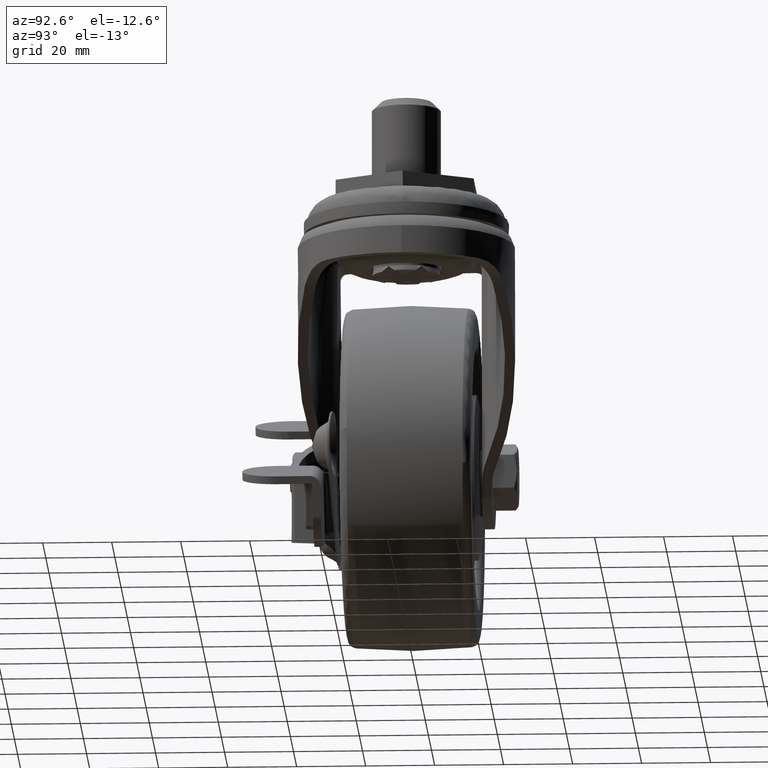
[diagram: clean part render]
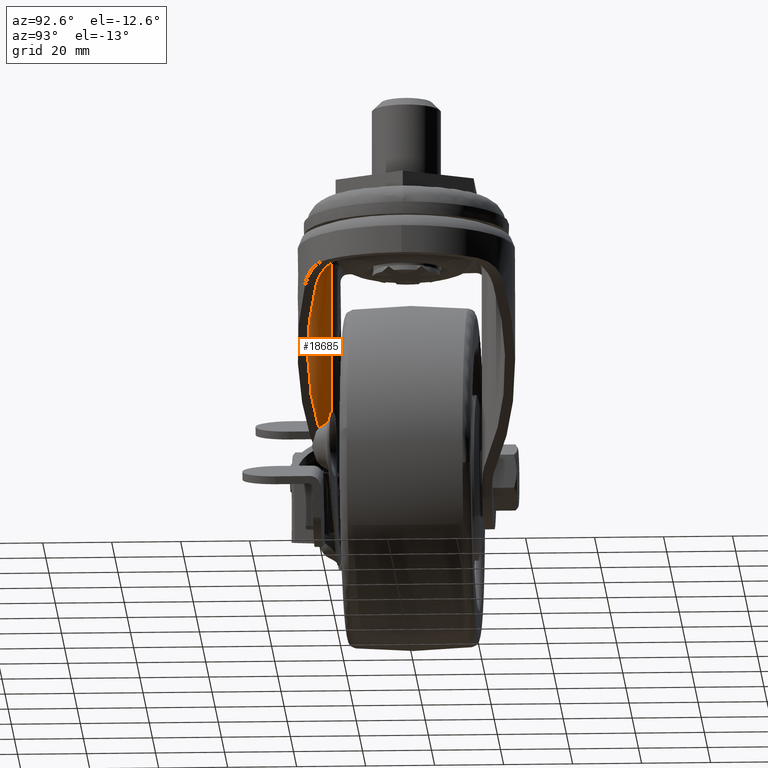
[diagram: same view with one face highlighted and labeled with its STEP entity id]
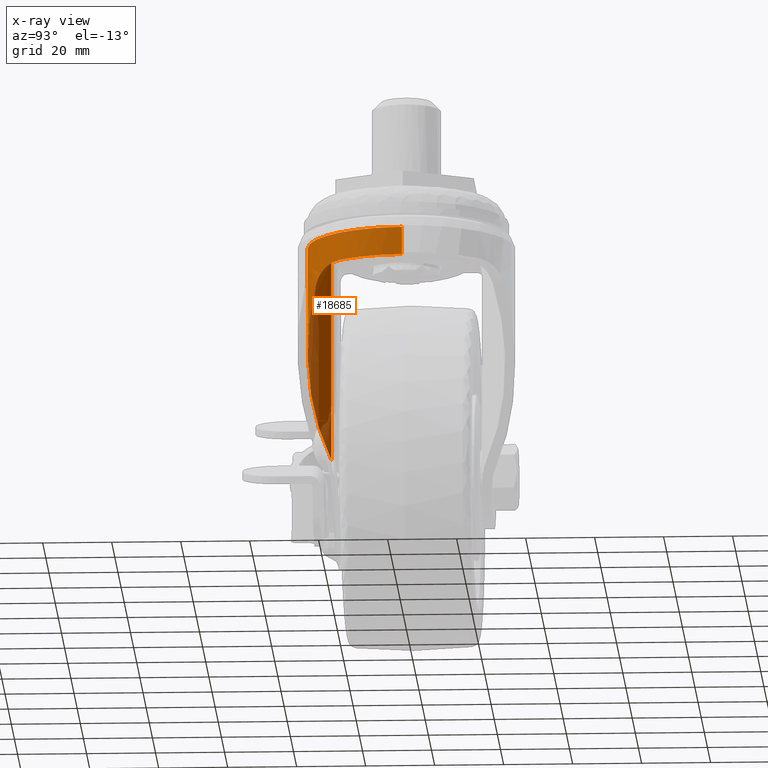
[diagram: x-ray of the same camera — body ghosted, the highlighted face saturated]
A machine part, auxiliary view. The second image highlights one B-rep face of the part: STEP entity #18685.
The next image is the same camera in x-ray: the body ghosted, the highlighted face saturated — about 4% of this face is hidden behind the body in this view.
In plain terms, the highlighted face is a freeform B-spline surface patch.
Its self-contained STEP definition (entity closure, byte-faithful):
#18084=CARTESIAN_POINT('',(-17.811575745032201,-22.616608977691950,-13.600000000000000));
#18085=VERTEX_POINT('',#18084);
#18104=CARTESIAN_POINT('',(-17.811575745032201,-22.616608977691950,-72.011274052201699));
#18105=VERTEX_POINT('',#18104);
#18106=CARTESIAN_POINT('',(-17.811575745032201,-22.616608977691950,-13.600000000000000));
#18107=CARTESIAN_POINT('',(-17.811575745032201,-22.616608977691950,-72.011274052201699));
#18108=QUASI_UNIFORM_CURVE('',1,(#18106,#18107),.UNSPECIFIED.,.F.,.U.);
#18109=EDGE_CURVE('',#18085,#18105,#18108,.T.);
#18341=CARTESIAN_POINT('',(12.862751000000200,-25.654295218901801,-27.145141999999950));
#18342=VERTEX_POINT('',#18341);
#18343=CARTESIAN_POINT('',(12.862751000000200,-25.654295218901801,-27.145141999999950));
#18344=CARTESIAN_POINT('',(12.228376631157021,-25.961531672081762,-28.073016454739509));
#18345=CARTESIAN_POINT('',(11.592434539451730,-26.241342536080289,-29.003183956088961));
#18346=CARTESIAN_POINT('',(10.317663681396940,-26.750465062462681,-30.867741184326949));
#18347=CARTESIAN_POINT('',(9.678834231863164,-26.979764773287421,-31.802131910482430));
#18348=CARTESIAN_POINT('',(7.758282126264521,-27.596572941515468,-34.611247986579428));
#18349=CARTESIAN_POINT('',(6.472515924605381,-27.913344010963559,-36.491887671727092));
#18350=CARTESIAN_POINT('',(3.891013800067967,-28.372476829811571,-40.267749361382322));
#18351=CARTESIAN_POINT('',(2.595272963256877,-28.514752615355469,-42.162978553306168));
#18352=CARTESIAN_POINT('',(-0.005966144399259,-28.628608597482081,-45.967708752392006));
#18353=CARTESIAN_POINT('',(-1.311463989402688,-28.600196243696089,-47.877209136692187));
#18354=CARTESIAN_POINT('',(-2.785815835756599,-28.469098417335118,-50.033685631832647));
#18355=CARTESIAN_POINT('',(-2.949732862046625,-28.453144929671659,-50.273440623303607));
#18356=CARTESIAN_POINT('',(-3.277065779133380,-28.418525800193269,-50.752217615057013));
#18357=CARTESIAN_POINT('',(-3.767557343747710,-28.362508389150371,-51.469640347474297));
#18358=CARTESIAN_POINT('',(-4.256526437774484,-28.294232577020878,-52.184836222004677));
#18359=CARTESIAN_POINT('',(-5.232430644983131,-28.141304049850749,-53.612252947231177));
#18360=CARTESIAN_POINT('',(-5.880323911248537,-28.017535441027722,-54.559900961859803));
#18361=CARTESIAN_POINT('',(-7.815756733017501,-27.579827837752489,-57.390782476601252));
#18362=CARTESIAN_POINT('',(-9.095096728848606,-27.199868854463681,-59.262022803071218));
#18363=CARTESIAN_POINT('',(-10.996444919875101,-26.487723716611900,-62.043050068147991));
#18364=CARTESIAN_POINT('',(-11.627273051627400,-26.226552608744939,-62.965737581282177));
#18365=CARTESIAN_POINT('',(-12.882651788551430,-25.653665942903451,-64.801930716164279));
#18366=CARTESIAN_POINT('',(-13.507203790993570,-25.341961635262681,-65.715438381644901));
#18367=CARTESIAN_POINT('',(-14.749517009645690,-24.663875982534570,-67.532521096500858));
#18368=CARTESIAN_POINT('',(-15.367280511241001,-24.297513038571619,-68.436099488619533));
#18369=CARTESIAN_POINT('',(-16.595303217275930,-23.504365172609472,-70.232280032369786));
#18370=CARTESIAN_POINT('',(-17.205566310407342,-23.077611560997571,-71.124887871837757));
#18371=CARTESIAN_POINT('',(-17.811575745032201,-22.616608977691950,-72.011274052201500));
#18372=B_SPLINE_CURVE_WITH_KNOTS('',3,(#18343,#18344,#18345,#18346,#18347,#18348,#18349,#18350,#18351,#18352,#18353,#18354,#18355,#18356,#18357,#18358,#18359,#18360,#18361,#18362,#18363,#18364,#18365,#18366,#18367,#18368,#18369,#18370,#18371),.UNSPECIFIED.,.F.,.U.,(4,2,2,2,2,2,2,1,2,2,2,2,2,2,4),(0.0,0.062500000000000,0.125000000000000,0.250000000000001,0.375000000000002,0.500000000000002,0.515625000000002,0.531250000000002,0.562500000000002,0.625000000000002,0.750000000000002,0.812500000000002,0.875000000000001,0.937500000000001,1.0),.UNSPECIFIED.);
#18373=EDGE_CURVE('',#18342,#18105,#18372,.T.);
#18439=CARTESIAN_POINT('',(23.181616000000201,-17.288022740067099,-21.699999999999999));
#18440=VERTEX_POINT('',#18439);
#18441=CARTESIAN_POINT('',(12.862751000000250,-25.654295218901790,-27.145141999999950));
#18442=CARTESIAN_POINT('',(13.202584324850671,-25.489709147131911,-26.648081072232110));
#18443=CARTESIAN_POINT('',(13.573847211764260,-25.301878005822800,-26.181849238479408));
#18444=CARTESIAN_POINT('',(14.073963489318279,-25.032786181593050,-25.637142103545269));
#18445=CARTESIAN_POINT('',(14.175794513894649,-24.977244560727112,-25.530111925518181));
#18446=CARTESIAN_POINT('',(14.383012252600309,-24.862549947549031,-25.319890088832349));
#18447=CARTESIAN_POINT('',(14.488036825227960,-24.803594225983350,-25.217077222691980));
#18448=CARTESIAN_POINT('',(14.805615062359360,-24.622661684813270,-24.916816292222890));
#18449=CARTESIAN_POINT('',(15.021285922013771,-24.496280894572550,-24.726907950118619));
#18450=CARTESIAN_POINT('',(15.678466868863209,-24.099195294027311,-24.186279311525979));
#18451=CARTESIAN_POINT('',(16.130106076924779,-23.810578056918612,-23.864576115383230));
#18452=CARTESIAN_POINT('',(16.822134836363428,-23.338550838062549,-23.435210524888401));
#18453=CARTESIAN_POINT('',(17.055251085431681,-23.174683669787068,-23.300975997863830));
#18454=CARTESIAN_POINT('',(17.525512509158251,-22.833262284098460,-23.049683200212161));
#18455=CARTESIAN_POINT('',(17.759764019582128,-22.657802478969661,-22.934165773064400));
#18456=CARTESIAN_POINT('',(18.458281463238670,-22.117711488373960,-22.615436311146389));
#18457=CARTESIAN_POINT('',(18.918601813657020,-21.739152123388781,-22.439773780034479));
#18458=CARTESIAN_POINT('',(19.824573362261749,-20.944838053781929,-22.149835032166369));
#18459=CARTESIAN_POINT('',(20.270239796793248,-20.529081985933679,-22.035612304189819));
#18460=CARTESIAN_POINT('',(20.925213578113770,-19.877140609364879,-21.903323318337598));
#18461=CARTESIAN_POINT('',(21.249323368843061,-19.544089233892830,-21.846965629890921));
#18462=CARTESIAN_POINT('',(21.567914528774221,-19.200305573133338,-21.804142858163448));
#18463=CARTESIAN_POINT('',(21.779032522415189,-18.968716764874049,-21.778483732514779));
#18464=CARTESIAN_POINT('',(21.884077459270021,-18.851578333571020,-21.767089023136290));
#18465=CARTESIAN_POINT('',(22.403280002699269,-18.262953945862758,-21.717279694090120));
#18466=CARTESIAN_POINT('',(22.801019416785199,-17.780976510213829,-21.700000005475982));
#18467=CARTESIAN_POINT('',(23.181616000000218,-17.288022740067110,-21.700000000000081));
#18468=B_SPLINE_CURVE_WITH_KNOTS('',3,(#18441,#18442,#18443,#18444,#18445,#18446,#18447,#18448,#18449,#18450,#18451,#18452,#18453,#18454,#18455,#18456,#18457,#18458,#18459,#18460,#18461,#18462,#18463,#18464,#18465,#18466,#18467),.UNSPECIFIED.,.F.,.U.,(4,2,2,2,2,2,2,2,2,2,1,2,2,4),(0.0,0.125000000000001,0.156250000000001,0.187500000000001,0.250000000000001,0.375000000000001,0.437500000000001,0.500000000000001,0.625000000000000,0.750000000000000,0.812499999999999,0.843750000000000,0.875000000000000,1.0),.UNSPECIFIED.);
#18469=EDGE_CURVE('',#18342,#18440,#18468,.T.);
#18557=CARTESIAN_POINT('',(29.100000000000001,0.0,-74.928917047550371));
#18558=CARTESIAN_POINT('',(29.100000000000012,-28.600000000000001,-74.928917047550357));
#18559=CARTESIAN_POINT('',(1.959370E-015,-28.600000000000001,-74.928917047550371));
#18560=CARTESIAN_POINT('',(-11.899244983950865,-28.600000000000005,-74.928917047550371));
#18561=CARTESIAN_POINT('',(-20.389273447257867,-20.405900910358383,-74.928917047550357));
#18562=CARTESIAN_POINT('',(29.100000000000001,0.0,-10.682357962086590));
#18563=CARTESIAN_POINT('',(29.100000000000012,-28.600000000000001,-10.682357962086584));
#18564=CARTESIAN_POINT('',(1.959370E-015,-28.600000000000001,-10.682357962086590));
#18565=CARTESIAN_POINT('',(-11.899244983950865,-28.600000000000005,-10.682357962086584));
#18566=CARTESIAN_POINT('',(-20.389273447257867,-20.405900910358383,-10.682357962086583));
#18574=(BOUNDED_SURFACE()B_SPLINE_SURFACE(2,1,((#18557,#18562),(#18558,#18563),(#18559,#18564),(#18560,#18565),(#18561,#18566)),.UNSPECIFIED.,.F.,.F.,.U.)B_SPLINE_SURFACE_WITH_KNOTS((3,2,3),(2,2),(0.0,47.808570764877167,71.451058067198289),(0.0,64.246559085463787),.UNSPECIFIED.)GEOMETRIC_REPRESENTATION_ITEM()RATIONAL_B_SPLINE_SURFACE(((1.0,1.0),(0.707106781186547,0.707106781186547),(1.0,1.0),(0.855157263730203,0.855157263730203),(0.853570956100934,0.853570956100934)))REPRESENTATION_ITEM('')SURFACE());
#18575=CARTESIAN_POINT('',(29.100000014363751,-0.000000456605498,-13.599999999999859));
#18576=VERTEX_POINT('',#18575);
#18577=CARTESIAN_POINT('',(-17.811575745032201,-22.616608977691950,-13.600000000000000));
#18578=CARTESIAN_POINT('',(-16.732939981011398,-23.437147149751048,-13.600000000000000));
#18579=CARTESIAN_POINT('',(-15.610028581010290,-24.172795332303782,-13.599999999999911));
#18580=CARTESIAN_POINT('',(-13.279846619904831,-25.482349282144970,-13.599999999999911));
#18581=CARTESIAN_POINT('',(-12.072560044024060,-26.056224344189481,-13.599999999999911));
#18582=CARTESIAN_POINT('',(-10.510190415845489,-26.671449697466581,-13.599999999999911));
#18583=CARTESIAN_POINT('',(-10.195041455231509,-26.789365904669101,-13.599999999999911));
#18584=CARTESIAN_POINT('',(-9.718258958600606,-26.958457759298199,-13.599999999999911));
#18585=CARTESIAN_POINT('',(-9.558654789816982,-27.013524326851091,-13.599999999999911));
#18586=CARTESIAN_POINT('',(-9.238083379669748,-27.121044033274210,-13.599999999999911));
#18587=CARTESIAN_POINT('',(-9.076958358553611,-27.173546135529978,-13.599999999999911));
#18588=CARTESIAN_POINT('',(-8.270227499492787,-27.428742378608021,-13.599999999999911));
#18589=CARTESIAN_POINT('',(-7.621444284729209,-27.609542636520150,-13.599999999999911));
#18590=CARTESIAN_POINT('',(-5.665183091495506,-28.083825251302301,-13.599999999999911));
#18591=CARTESIAN_POINT('',(-4.347839263139228,-28.309503520776559,-13.599999999999911));
#18592=CARTESIAN_POINT('',(-2.352319730924172,-28.513979086189501,-13.599999999999911));
#18593=CARTESIAN_POINT('',(-1.683884330536354,-28.559717638626431,-13.599999999999900));
#18594=CARTESIAN_POINT('',(-0.676263418530487,-28.594183662586460,-13.599999999999900));
#18595=CARTESIAN_POINT('',(-0.339561067059315,-28.599976912482429,-13.599999999999911));
#18596=CARTESIAN_POINT('',(0.166751858450564,-28.600011440488721,-13.599999999999900));
#18597=CARTESIAN_POINT('',(0.335732783776540,-28.598580045371740,-13.599999999999900));
#18598=CARTESIAN_POINT('',(0.674117880338041,-28.592808453263480,-13.599999999999911));
#18599=CARTESIAN_POINT('',(0.843519337820390,-28.588464560993572,-13.599999999999900));
#18600=CARTESIAN_POINT('',(2.364144725044675,-28.536433512468921,-13.599999999999900));
#18601=CARTESIAN_POINT('',(3.698053832972889,-28.398522065625968,-13.599999999999900));
#18602=CARTESIAN_POINT('',(6.331580792743363,-27.945696724122978,-13.599999999999900));
#18603=CARTESIAN_POINT('',(7.631196553979185,-27.630772038302180,-13.599999999999900));
#18604=CARTESIAN_POINT('',(9.233794671645061,-27.123962728820398,-13.599999999999900));
#18605=CARTESIAN_POINT('',(9.553213263067669,-27.016917628660359,-13.599999999999900));
#18606=CARTESIAN_POINT('',(10.189815622644470,-26.791291858224280,-13.599999999999900));
#18607=CARTESIAN_POINT('',(10.507568180022380,-26.672473761305859,-13.599999999999890));
#18608=CARTESIAN_POINT('',(11.450935936333209,-26.301022661209910,-13.599999999999890));
#18609=CARTESIAN_POINT('',(12.067921680440460,-26.033065585948410,-13.599999999999890));
#18610=CARTESIAN_POINT('',(13.883896527258401,-25.169581602390679,-13.599999999999890));
#18611=CARTESIAN_POINT('',(15.048066773654890,-24.514720603022269,-13.599999999999890));
#18612=CARTESIAN_POINT('',(16.724700241812290,-23.413787865348102,-13.599999999999881));
#18613=CARTESIAN_POINT('',(17.271933467373199,-23.026966969558110,-13.599999999999881));
#18614=CARTESIAN_POINT('',(18.074944737290771,-22.416337291306771,-13.599999999999881));
#18615=CARTESIAN_POINT('',(18.339639308605889,-22.207722977550159,-13.599999999999881));
#18616=CARTESIAN_POINT('',(18.862979743275289,-21.780186872221599,-13.599999999999881));
#18617=CARTESIAN_POINT('',(19.121970861957070,-21.560936630397219,-13.599999999999881));
#18618=CARTESIAN_POINT('',(20.391821992374091,-20.447140288000021,-13.599999999999881));
#18619=CARTESIAN_POINT('',(21.334681334815361,-19.494891829582759,-13.599999999999870));
#18620=CARTESIAN_POINT('',(23.078361966503369,-17.471329452323410,-13.599999999999870));
#18621=CARTESIAN_POINT('',(23.879185343160170,-16.400017283283159,-13.599999999999870));
#18622=CARTESIAN_POINT('',(24.788666827226869,-14.984135852412781,-13.599999999999870));
#18623=CARTESIAN_POINT('',(24.965964387801900,-14.697104608815140,-13.599999999999870));
#18624=CARTESIAN_POINT('',(25.224893428886539,-14.260675389991571,-13.599999999999870));
#18625=CARTESIAN_POINT('',(25.310110568996461,-14.114079016822281,-13.599999999999870));
#18626=CARTESIAN_POINT('',(25.477580463266399,-13.819974892112990,-13.599999999999870));
#18627=CARTESIAN_POINT('',(25.559881111336178,-13.672392308152350,-13.599999999999870));
#18628=CARTESIAN_POINT('',(25.964266721648791,-12.931846704127880,-13.599999999999870));
#18629=CARTESIAN_POINT('',(26.265026271597659,-12.330995794952949,-13.599999999999870));
#18630=CARTESIAN_POINT('',(27.100450494297629,-10.503714808923720,-13.599999999999870));
#18631=CARTESIAN_POINT('',(27.568581710124999,-9.252675194717591,-13.599999999999870));
#18632=CARTESIAN_POINT('',(28.137121887437090,-7.326678567156085,-13.599999999999870));
#18633=CARTESIAN_POINT('',(28.304279221929900,-6.676410584773525,-13.599999999999859));
#18634=CARTESIAN_POINT('',(28.484604151162500,-5.852988936799601,-13.599999999999859));
#18635=CARTESIAN_POINT('',(28.519236290041981,-5.687774622703993,-13.599999999999870));
#18636=CARTESIAN_POINT('',(28.585610717277881,-5.356277090420384,-13.599999999999870));
#18637=CARTESIAN_POINT('',(28.617376101817751,-5.189865227705866,-13.599999999999859));
#18638=CARTESIAN_POINT('',(28.708135130792019,-4.689909295658024,-13.599999999999859));
#18639=CARTESIAN_POINT('',(28.762443881481460,-4.356526276098738,-13.599999999999859));
#18640=CARTESIAN_POINT('',(29.003481230934881,-2.689221977070626,-13.599999999999859));
#18641=CARTESIAN_POINT('',(29.099145883686631,-1.354138902197815,-13.599999999999859));
#18642=CARTESIAN_POINT('',(29.099998097049330,-0.011897616433074,-13.599999999999859));
#18643=CARTESIAN_POINT('',(29.099999995199848,-0.005949048505358,-13.599999999999859));
#18644=CARTESIAN_POINT('',(29.100000014363751,-0.000000456605498,-13.599999999999859));
#18645=B_SPLINE_CURVE_WITH_KNOTS('',3,(#18577,#18578,#18579,#18580,#18581,#18582,#18583,#18584,#18585,#18586,#18587,#18588,#18589,#18590,#18591,#18592,#18593,#18594,#18595,#18596,#18597,#18598,#18599,#18600,#18601,#18602,#18603,#18604,#18605,#18606,#18607,#18608,#18609,#18610,#18611,#18612,#18613,#18614,#18615,#18616,#18617,#18618,#18619,#18620,#18621,#18622,#18623,#18624,#18625,#18626,#18627,#18628,#18629,#18630,#18631,#18632,#18633,#18634,#18635,#18636,#18637,#18638,#18639,#18640,#18641,#18642,#18643,#18644),.UNSPECIFIED.,.F.,.U.,(4,2,2,2,2,2,2,2,2,2,2,2,2,2,2,2,2,2,2,2,2,2,2,2,2,2,2,2,2,2,2,2,2,4),(0.0,0.031250000000000,0.062500000000000,0.070312500000000,0.074218750000000,0.078125000000000,0.093750000000000,0.125000000000000,0.140625000000000,0.148437500000000,0.152343750000000,0.156250000000000,0.187500000000000,0.218750000000000,0.226562500000000,0.234375000000000,0.250000000000000,0.281250000000000,0.296875000000000,0.304687499999999,0.312499999999999,0.343749999999999,0.374999999999999,0.382812499999999,0.386718749999999,0.390624999999999,0.406249999999999,0.437499999999999,0.453124999999999,0.457031249999999,0.460937499999998,0.468749999999998,0.499999999999998,0.500139110236038),.UNSPECIFIED.);
#18646=EDGE_CURVE('',#18085,#18576,#18645,.T.);
#18647=ORIENTED_EDGE('',*,*,#18646,.T.);
#18648=CARTESIAN_POINT('',(29.100000000714680,0.000002647915596,-21.700000000000081));
#18649=VERTEX_POINT('',#18648);
#18650=CARTESIAN_POINT('',(29.100000000714680,0.000002647915596,-21.700000000000081));
#18651=CARTESIAN_POINT('',(29.100000014363751,-0.000000456605498,-13.599999999999859));
#18652=QUASI_UNIFORM_CURVE('',1,(#18650,#18651),.UNSPECIFIED.,.F.,.U.);
#18653=EDGE_CURVE('',#18649,#18576,#18652,.T.);
#18654=ORIENTED_EDGE('',*,*,#18653,.F.);
#18655=CARTESIAN_POINT('',(29.100000000714680,0.000002647915596,-21.700000000000081));
#18656=CARTESIAN_POINT('',(29.099999999987201,-0.002354447910457,-21.700000000000081));
#18657=CARTESIAN_POINT('',(29.099999703234271,-0.004711588758289,-21.700000000000081));
#18658=CARTESIAN_POINT('',(29.099802307710839,-0.789622312405713,-21.700000000000081));
#18659=CARTESIAN_POINT('',(29.066985183358959,-1.566601144222461,-21.700000000000081));
#18660=CARTESIAN_POINT('',(28.938184197756371,-3.109763819725974,-21.700000000000070));
#18661=CARTESIAN_POINT('',(28.746207452592419,-4.642129965156079,-21.700000000000060));
#18662=CARTESIAN_POINT('',(28.429399725743089,-6.153162905299591,-21.700000000000070));
#18663=CARTESIAN_POINT('',(28.049702279619432,-7.653448198716451,-21.700000000000049));
#18664=CARTESIAN_POINT('',(27.828412395176692,-8.398217654081414,-21.700000000000049));
#18665=CARTESIAN_POINT('',(27.511400350570518,-9.322275298951729,-21.700000000000038));
#18666=CARTESIAN_POINT('',(27.445952049983269,-9.506786261974400,-21.700000000000049));
#18667=CARTESIAN_POINT('',(27.311620124771299,-9.873394702606838,-21.700000000000038));
#18668=CARTESIAN_POINT('',(27.104752644412450,-10.420332733273209,-21.700000000000038));
#18669=CARTESIAN_POINT('',(26.881940292226069,-10.958437673118580,-21.700000000000031));
#18670=CARTESIAN_POINT('',(26.415384699279521,-12.023052323839419,-21.700000000000031));
#18671=CARTESIAN_POINT('',(26.076473865667460,-12.717353998440229,-21.700000000000021));
#18672=CARTESIAN_POINT('',(25.343793989550619,-14.075567166606330,-21.700000000000021));
#18673=CARTESIAN_POINT('',(24.950023818950118,-14.739478035232640,-21.700000000000010));
#18674=CARTESIAN_POINT('',(24.107430012907180,-16.036801424162491,-21.699999999999999));
#18675=CARTESIAN_POINT('',(23.658608809672540,-16.670215291852980,-21.699999999999999));
#18676=CARTESIAN_POINT('',(23.181616000000201,-17.288022740067099,-21.699999999999999));
#18677=B_SPLINE_CURVE_WITH_KNOTS('',3,(#18655,#18656,#18657,#18658,#18659,#18660,#18661,#18662,#18663,#18664,#18665,#18666,#18667,#18668,#18669,#18670,#18671,#18672,#18673,#18674,#18675,#18676),.UNSPECIFIED.,.F.,.U.,(4,2,2,1,2,2,2,1,2,2,2,4),(0.499811739248937,0.499999999999999,0.562499999999999,0.624999999999998,0.687499999999998,0.749999999999998,0.765624999999998,0.781249999999998,0.812499999999998,0.874999999999999,0.937499999999999,1.0),.UNSPECIFIED.);
#18678=EDGE_CURVE('',#18649,#18440,#18677,.T.);
#18679=ORIENTED_EDGE('',*,*,#18678,.T.);
#18680=ORIENTED_EDGE('',*,*,#18469,.F.);
#18681=ORIENTED_EDGE('',*,*,#18373,.T.);
#18682=ORIENTED_EDGE('',*,*,#18109,.F.);
#18683=EDGE_LOOP('',(#18647,#18654,#18679,#18680,#18681,#18682));
#18684=FACE_OUTER_BOUND('',#18683,.T.);
#18685=ADVANCED_FACE('',(#18684),#18574,.T.);